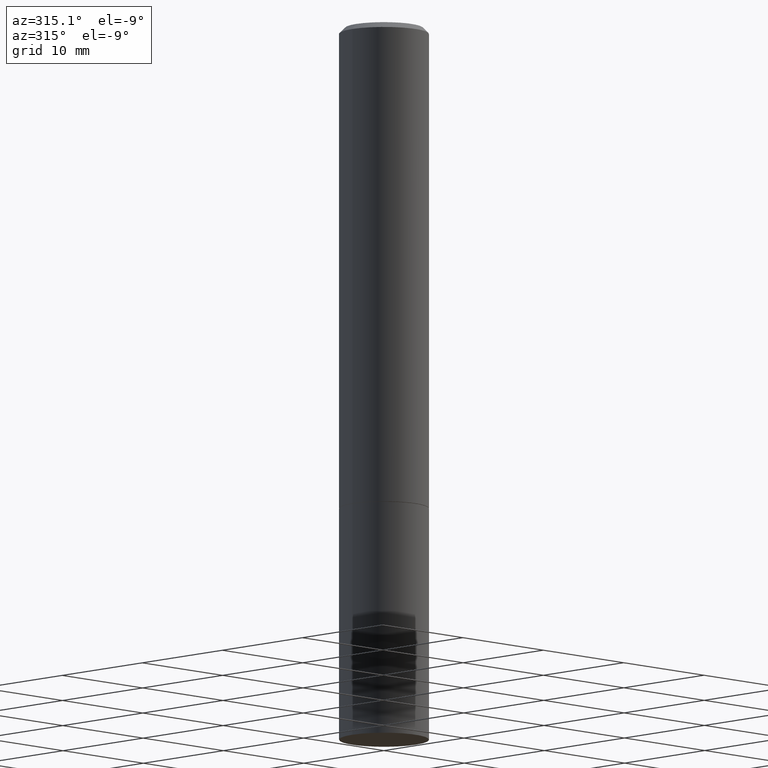
[diagram: clean part render]
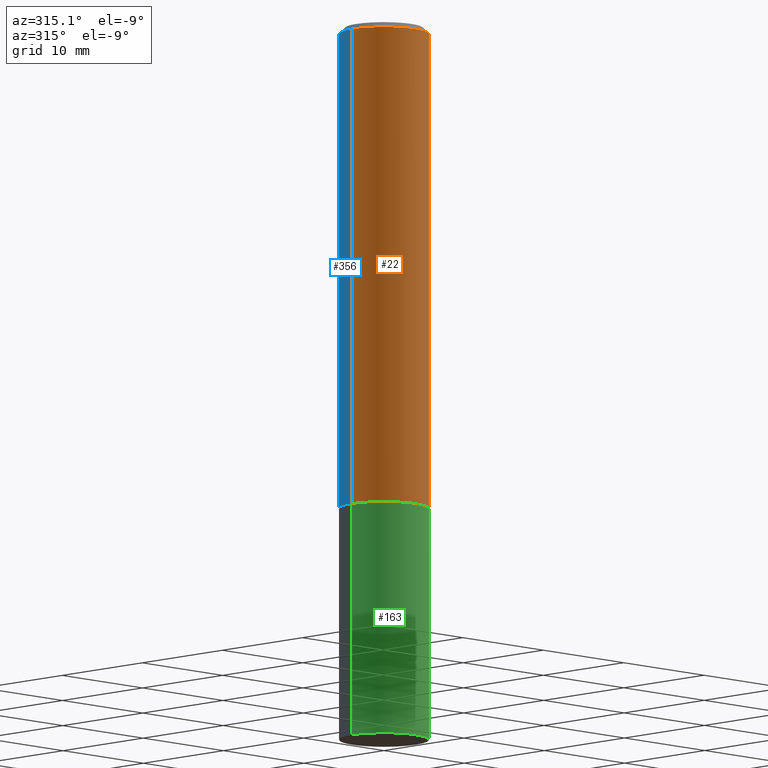
[diagram: same view with three faces highlighted in distinct colors, each labeled with its STEP entity id]
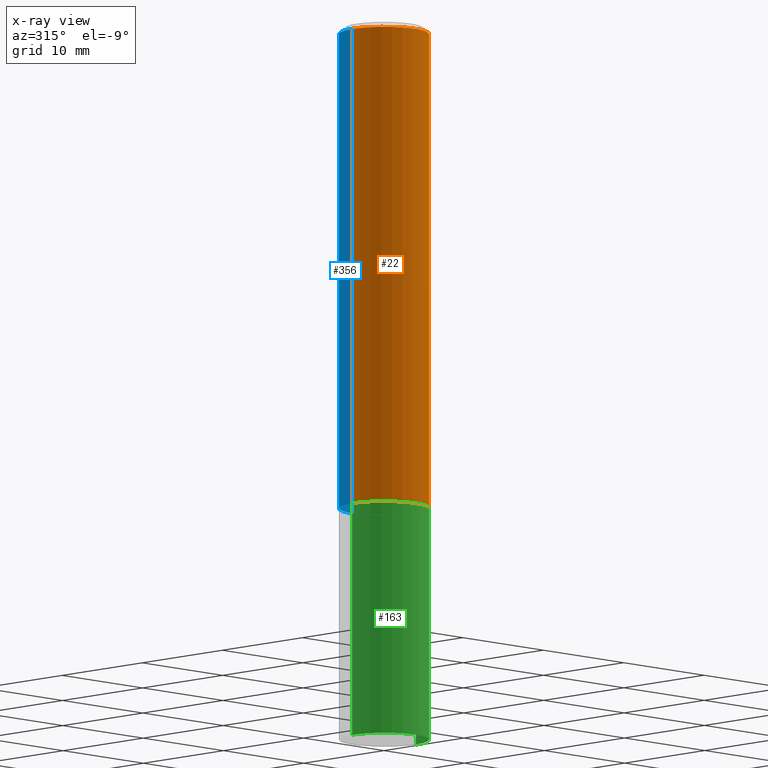
[diagram: x-ray of the same camera — body ghosted, the three highlighted faces saturated]
A machine part, auxiliary view with three faces highlighted in distinct colors.
The next image is the same camera in x-ray (body ghosted, the three faces saturated) — at least one of them is partly hidden behind the body in this view.
Their STEP definitions:

[orange] entity #22 — the highlighted cylindrical surface (partial cylindrical patch) has radius 3.9687 mm, axis along (-0, 0, 1).
#17 = AXIS2_PLACEMENT_3D ( 'NONE', #73, #187, #119 ) ;
#22 = ADVANCED_FACE ( 'NONE', ( #44 ), #329, .T. ) ;
#35 = VERTEX_POINT ( 'NONE', #42 ) ;
#42 = CARTESIAN_POINT ( 'NONE',  ( -0.1562500000000000000, -1.869756298077466803E-15, -1.687000000000000055 ) ) ;
#44 = FACE_OUTER_BOUND ( 'NONE', #162, .T. ) ;
#63 = CARTESIAN_POINT ( 'NONE',  ( 0.1562499999999999445, -1.091087918388478779E-15, 7.619026212181146173E-30 ) ) ;
#73 = CARTESIAN_POINT ( 'NONE',  ( 0.000000000000000000, 0.000000000000000000, 0.000000000000000000 ) ) ;
#84 = EDGE_CURVE ( 'NONE', #35, #302, #243, .T. ) ;
#89 = VERTEX_POINT ( 'NONE', #184 ) ;
#92 = CARTESIAN_POINT ( 'NONE',  ( 4.125505876034325766E-29, -5.890129018628387333E-15, -1.687000000000000055 ) ) ;
#103 = ORIENTED_EDGE ( 'NONE', *, *, #84, .T. ) ;
#119 = DIRECTION ( 'NONE',  ( 1.000000000000000000, -6.982962677686266711E-15, 4.876176775795935232E-29 ) ) ;
#122 = AXIS2_PLACEMENT_3D ( 'NONE', #92, #147, #206 ) ;
#123 = DIRECTION ( 'NONE',  ( -2.445468806185136877E-29, 3.491481338843145188E-15, 1.000000000000000000 ) ) ;
#139 = EDGE_CURVE ( 'NONE', #302, #89, #246, .T. ) ;
#147 = DIRECTION ( 'NONE',  ( -2.445468806185136597E-29, 3.491481338843145583E-15, 1.000000000000000000 ) ) ;
#158 = DIRECTION ( 'NONE',  ( 1.000000000000000000, -6.982962677686265133E-15, 0.000000000000000000 ) ) ;
#162 = EDGE_LOOP ( 'NONE', ( #193, #103, #203, #173 ) ) ;
#165 = DIRECTION ( 'NONE',  ( -2.445468806185136597E-29, 3.491481338843145583E-15, 1.000000000000000000 ) ) ;
#170 = CIRCLE ( 'NONE', #223, 0.1562499999999998335 ) ;
#173 = ORIENTED_EDGE ( 'NONE', *, *, #351, .F. ) ;
#182 = VECTOR ( 'NONE', #186, 39.37007874015748143 ) ;
#184 = CARTESIAN_POINT ( 'NONE',  ( 0.1562499999999998335, -1.141782438928663724E-15, -0.02000000000000003511 ) ) ;
#186 = DIRECTION ( 'NONE',  ( -2.445468806185136877E-29, 3.491481338843145188E-15, 1.000000000000000000 ) ) ;
#187 = DIRECTION ( 'NONE',  ( -2.445468806185136597E-29, 3.491481338843145583E-15, 1.000000000000000000 ) ) ;
#193 = ORIENTED_EDGE ( 'NONE', *, *, #238, .F. ) ;
#195 = CARTESIAN_POINT ( 'NONE',  ( -0.1562499999999998335, 1.021258291611615086E-15, -0.02000000000000003511 ) ) ;
#203 = ORIENTED_EDGE ( 'NONE', *, *, #139, .T. ) ;
#206 = DIRECTION ( 'NONE',  ( 1.000000000000000000, -6.982962677686269077E-15, 0.000000000000000000 ) ) ;
#213 = VERTEX_POINT ( 'NONE', #195 ) ;
#223 = AXIS2_PLACEMENT_3D ( 'NONE', #255, #165, #158 ) ;
#225 = LINE ( 'NONE', #337, #182 ) ;
#238 = EDGE_CURVE ( 'NONE', #35, #213, #225, .T. ) ;
#243 = CIRCLE ( 'NONE', #122, 0.1562500000000000000 ) ;
#246 = LINE ( 'NONE', #63, #365 ) ;
#255 = CARTESIAN_POINT ( 'NONE',  ( 4.890937612370281041E-31, -6.982962677686302702E-17, -0.02000000000000003511 ) ) ;
#302 = VERTEX_POINT ( 'NONE', #306 ) ;
#306 = CARTESIAN_POINT ( 'NONE',  ( 0.1562500000000000000, -6.981216937016866506E-15, -1.687000000000000055 ) ) ;
#329 = CYLINDRICAL_SURFACE ( 'NONE', #17, 0.1562499999999999445 ) ;
#337 = CARTESIAN_POINT ( 'NONE',  ( -0.1562499999999999445, 1.110223024625156146E-15, -7.685836078523286956E-30 ) ) ;
#351 = EDGE_CURVE ( 'NONE', #213, #89, #170, .T. ) ;
#365 = VECTOR ( 'NONE', #123, 39.37007874015748143 ) ;

[blue] entity #356 — the highlighted cylindrical surface (partial cylindrical patch) has radius 3.9687 mm, axis along (-0, 0, 1).
#11 = AXIS2_PLACEMENT_3D ( 'NONE', #106, #108, #259 ) ;
#16 = CYLINDRICAL_SURFACE ( 'NONE', #57, 0.1562499999999999445 ) ;
#20 = DIRECTION ( 'NONE',  ( -2.445468806185136597E-29, 3.491481338843145583E-15, 1.000000000000000000 ) ) ;
#23 = DIRECTION ( 'NONE',  ( 1.000000000000000000, -6.982962677686265133E-15, 0.000000000000000000 ) ) ;
#35 = VERTEX_POINT ( 'NONE', #42 ) ;
#42 = CARTESIAN_POINT ( 'NONE',  ( -0.1562500000000000000, -1.869756298077466803E-15, -1.687000000000000055 ) ) ;
#46 = EDGE_LOOP ( 'NONE', ( #127, #48, #157, #331 ) ) ;
#47 = DIRECTION ( 'NONE',  ( -2.445468806185136597E-29, 3.491481338843145583E-15, 1.000000000000000000 ) ) ;
#48 = ORIENTED_EDGE ( 'NONE', *, *, #238, .T. ) ;
#50 = AXIS2_PLACEMENT_3D ( 'NONE', #303, #47, #23 ) ;
#57 = AXIS2_PLACEMENT_3D ( 'NONE', #279, #20, #224 ) ;
#63 = CARTESIAN_POINT ( 'NONE',  ( 0.1562499999999999445, -1.091087918388478779E-15, 7.619026212181146173E-30 ) ) ;
#89 = VERTEX_POINT ( 'NONE', #184 ) ;
#106 = CARTESIAN_POINT ( 'NONE',  ( 4.125505876034325766E-29, -5.890129018628387333E-15, -1.687000000000000055 ) ) ;
#108 = DIRECTION ( 'NONE',  ( -2.445468806185136597E-29, 3.491481338843145583E-15, 1.000000000000000000 ) ) ;
#112 = CIRCLE ( 'NONE', #11, 0.1562500000000000000 ) ;
#123 = DIRECTION ( 'NONE',  ( -2.445468806185136877E-29, 3.491481338843145188E-15, 1.000000000000000000 ) ) ;
#127 = ORIENTED_EDGE ( 'NONE', *, *, #232, .T. ) ;
#139 = EDGE_CURVE ( 'NONE', #302, #89, #246, .T. ) ;
#157 = ORIENTED_EDGE ( 'NONE', *, *, #322, .F. ) ;
#182 = VECTOR ( 'NONE', #186, 39.37007874015748143 ) ;
#184 = CARTESIAN_POINT ( 'NONE',  ( 0.1562499999999998335, -1.141782438928663724E-15, -0.02000000000000003511 ) ) ;
#186 = DIRECTION ( 'NONE',  ( -2.445468806185136877E-29, 3.491481338843145188E-15, 1.000000000000000000 ) ) ;
#195 = CARTESIAN_POINT ( 'NONE',  ( -0.1562499999999998335, 1.021258291611615086E-15, -0.02000000000000003511 ) ) ;
#213 = VERTEX_POINT ( 'NONE', #195 ) ;
#224 = DIRECTION ( 'NONE',  ( 1.000000000000000000, -6.982962677686266711E-15, 4.876176775795935232E-29 ) ) ;
#225 = LINE ( 'NONE', #337, #182 ) ;
#232 = EDGE_CURVE ( 'NONE', #302, #35, #112, .T. ) ;
#238 = EDGE_CURVE ( 'NONE', #35, #213, #225, .T. ) ;
#246 = LINE ( 'NONE', #63, #365 ) ;
#259 = DIRECTION ( 'NONE',  ( 1.000000000000000000, -6.982962677686269077E-15, 0.000000000000000000 ) ) ;
#276 = FACE_OUTER_BOUND ( 'NONE', #46, .T. ) ;
#279 = CARTESIAN_POINT ( 'NONE',  ( 0.000000000000000000, 0.000000000000000000, 0.000000000000000000 ) ) ;
#302 = VERTEX_POINT ( 'NONE', #306 ) ;
#303 = CARTESIAN_POINT ( 'NONE',  ( 4.890937612370281041E-31, -6.982962677686302702E-17, -0.02000000000000003511 ) ) ;
#306 = CARTESIAN_POINT ( 'NONE',  ( 0.1562500000000000000, -6.981216937016866506E-15, -1.687000000000000055 ) ) ;
#322 = EDGE_CURVE ( 'NONE', #89, #213, #325, .T. ) ;
#325 = CIRCLE ( 'NONE', #50, 0.1562499999999998335 ) ;
#331 = ORIENTED_EDGE ( 'NONE', *, *, #139, .F. ) ;
#337 = CARTESIAN_POINT ( 'NONE',  ( -0.1562499999999999445, 1.110223024625156146E-15, -7.685836078523286956E-30 ) ) ;
#356 = ADVANCED_FACE ( 'NONE', ( #276 ), #16, .T. ) ;
#365 = VECTOR ( 'NONE', #123, 39.37007874015748143 ) ;

[green] entity #163 — the highlighted cylindrical surface (partial cylindrical patch) has radius 3.9688 mm, axis along (-0, 0, 1).
#6 = DIRECTION ( 'NONE',  ( -2.445468806185136597E-29, 3.491481338843145583E-15, 1.000000000000000000 ) ) ;
#10 = CARTESIAN_POINT ( 'NONE',  ( -0.1562500000000000000, -6.200938898912389918E-15, -2.500000000000000000 ) ) ;
#37 = DIRECTION ( 'NONE',  ( -2.445468806185136597E-29, 3.491481338843145583E-15, 1.000000000000000000 ) ) ;
#56 = CIRCLE ( 'NONE', #166, 0.1562500000000000000 ) ;
#64 = EDGE_CURVE ( 'NONE', #159, #148, #56, .T. ) ;
#75 = EDGE_CURVE ( 'NONE', #155, #131, #129, .T. ) ;
#76 = ORIENTED_EDGE ( 'NONE', *, *, #197, .T. ) ;
#79 = VECTOR ( 'NONE', #272, 39.37007874015748143 ) ;
#80 = ORIENTED_EDGE ( 'NONE', *, *, #136, .F. ) ;
#94 = LINE ( 'NONE', #323, #202 ) ;
#96 = CARTESIAN_POINT ( 'NONE',  ( 0.000000000000000000, 0.000000000000000000, 0.000000000000000000 ) ) ;
#98 = ORIENTED_EDGE ( 'NONE', *, *, #64, .T. ) ;
#120 = CARTESIAN_POINT ( 'NONE',  ( 4.127951344840510809E-29, -5.893620499967230340E-15, -1.688000000000000167 ) ) ;
#129 = CIRCLE ( 'NONE', #230, 0.1562500000000000000 ) ;
#131 = VERTEX_POINT ( 'NONE', #180 ) ;
#136 = EDGE_CURVE ( 'NONE', #159, #155, #204, .T. ) ;
#148 = VERTEX_POINT ( 'NONE', #270 ) ;
#149 = DIRECTION ( 'NONE',  ( -2.445468806185136597E-29, 3.491481338843145583E-15, 1.000000000000000000 ) ) ;
#151 = CARTESIAN_POINT ( 'NONE',  ( 6.113672015462842613E-29, -8.728703347107864943E-15, -2.500000000000000000 ) ) ;
#155 = VERTEX_POINT ( 'NONE', #210 ) ;
#159 = VERTEX_POINT ( 'NONE', #10 ) ;
#163 = ADVANCED_FACE ( 'NONE', ( #177 ), #244, .T. ) ;
#166 = AXIS2_PLACEMENT_3D ( 'NONE', #151, #6, #266 ) ;
#177 = FACE_OUTER_BOUND ( 'NONE', #310, .T. ) ;
#179 = DIRECTION ( 'NONE',  ( 1.000000000000000000, -6.982962677686269077E-15, 0.000000000000000000 ) ) ;
#180 = CARTESIAN_POINT ( 'NONE',  ( 0.1562500000000000000, -6.984708418355709513E-15, -1.688000000000000167 ) ) ;
#197 = EDGE_CURVE ( 'NONE', #148, #131, #94, .T. ) ;
#202 = VECTOR ( 'NONE', #298, 39.37007874015748143 ) ;
#204 = LINE ( 'NONE', #317, #79 ) ;
#210 = CARTESIAN_POINT ( 'NONE',  ( -0.1562500000000000000, -6.200938898912389918E-15, -1.688000000000000167 ) ) ;
#230 = AXIS2_PLACEMENT_3D ( 'NONE', #120, #37, #179 ) ;
#244 = CYLINDRICAL_SURFACE ( 'NONE', #345, 0.1562500000000000000 ) ;
#266 = DIRECTION ( 'NONE',  ( 1.000000000000000000, -6.982962677686269077E-15, 0.000000000000000000 ) ) ;
#267 = ORIENTED_EDGE ( 'NONE', *, *, #75, .F. ) ;
#268 = DIRECTION ( 'NONE',  ( 1.000000000000000000, -6.982962677686266711E-15, 4.876176775795936353E-29 ) ) ;
#270 = CARTESIAN_POINT ( 'NONE',  ( 0.1562500000000000000, -9.819791265496344905E-15, -2.500000000000000000 ) ) ;
#272 = DIRECTION ( 'NONE',  ( -2.445468806185136877E-29, 3.491481338843145188E-15, 1.000000000000000000 ) ) ;
#298 = DIRECTION ( 'NONE',  ( -2.445468806185136877E-29, 3.491481338843145188E-15, 1.000000000000000000 ) ) ;
#310 = EDGE_LOOP ( 'NONE', ( #80, #98, #76, #267 ) ) ;
#317 = CARTESIAN_POINT ( 'NONE',  ( -0.1562500000000000000, 1.110223024625156540E-15, -7.685836078523291160E-30 ) ) ;
#323 = CARTESIAN_POINT ( 'NONE',  ( 0.1562500000000000000, -1.091087918388479174E-15, 7.619026212181150377E-30 ) ) ;
#345 = AXIS2_PLACEMENT_3D ( 'NONE', #96, #149, #268 ) ;